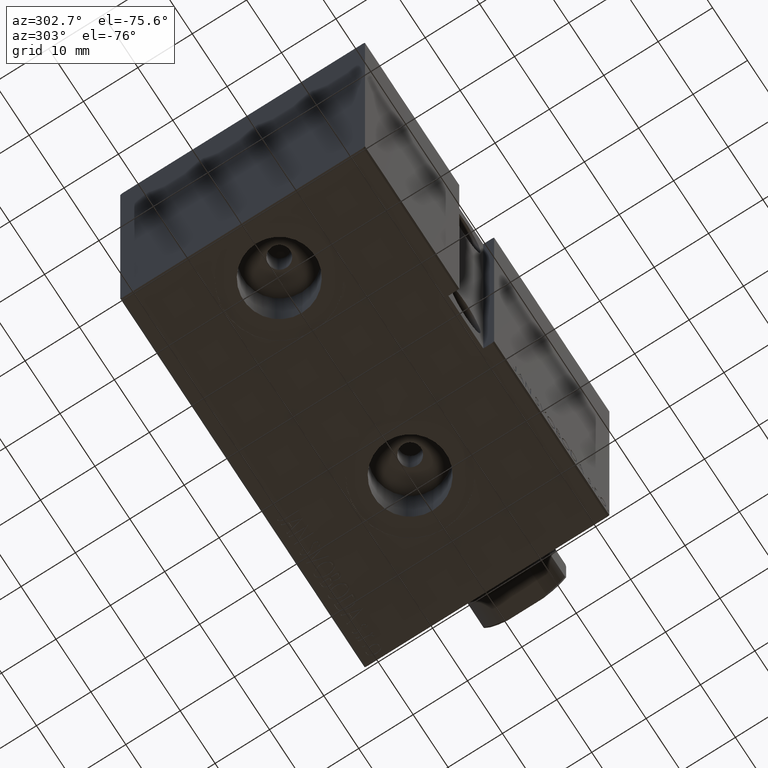
[diagram: clean part render]
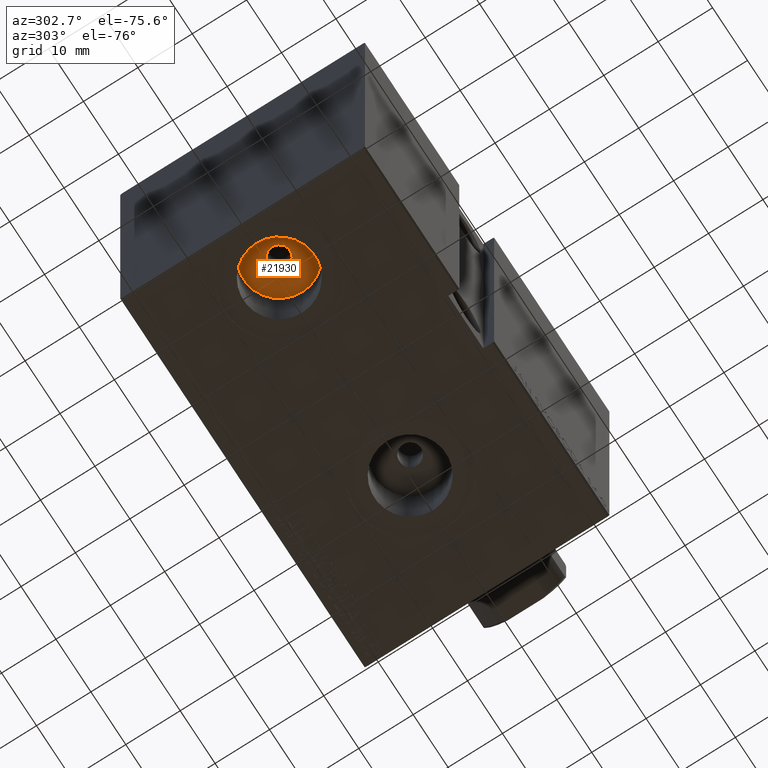
[diagram: same view with one face highlighted and labeled with its STEP entity id]
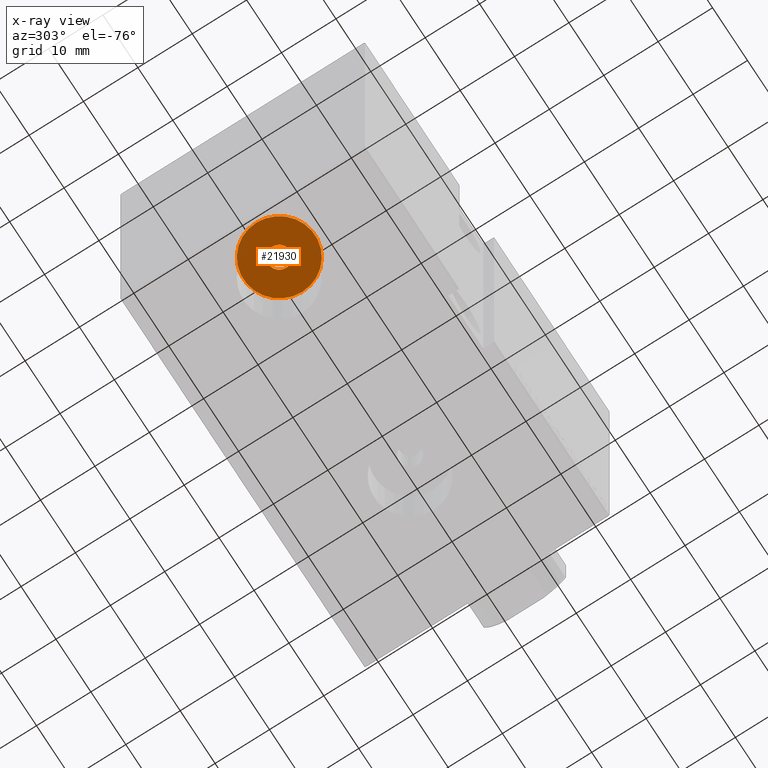
[diagram: x-ray of the same camera — body ghosted, the highlighted face saturated]
A machine part, auxiliary view. The second image highlights one B-rep face of the part: STEP entity #21930.
The next image is the same camera in x-ray: the body ghosted, the highlighted face saturated — about 5% of this face is hidden behind the body in this view.
In plain terms, the highlighted planar face has unit normal (-0, 0, -1).
Its self-contained STEP definition (entity closure, byte-faithful):
#2844 = EDGE_CURVE ( 'NONE', #32928, #23031, #12277, .T. ) ;
#8086 = VERTEX_POINT ( 'NONE', #24657 ) ;
#8460 = FACE_OUTER_BOUND ( 'NONE', #33020, .T. ) ;
#10645 = DIRECTION ( 'NONE',  ( -1.000000000000000000, 0.000000000000000000, 0.000000000000000000 ) ) ;
#10933 = EDGE_CURVE ( 'NONE', #23031, #32928, #41000, .T. ) ;
#11424 = DIRECTION ( 'NONE',  ( -1.000000000000000000, 0.000000000000000000, 0.000000000000000000 ) ) ;
#11504 = DIRECTION ( 'NONE',  ( 0.000000000000000000, 0.000000000000000000, -1.000000000000000000 ) ) ;
#12277 = CIRCLE ( 'NONE', #37968, 6.580000000000002736 ) ;
#14108 = PLANE ( 'NONE',  #16254 ) ;
#16142 = ORIENTED_EDGE ( 'NONE', *, *, #2844, .T. ) ;
#16254 = AXIS2_PLACEMENT_3D ( 'NONE', #37372, #11504, #41490 ) ;
#17062 = CIRCLE ( 'NONE', #20547, 2.000000000000001776 ) ;
#17712 = EDGE_CURVE ( 'NONE', #8086, #30688, #30754, .T. ) ;
#20534 = ORIENTED_EDGE ( 'NONE', *, *, #10933, .T. ) ;
#20547 = AXIS2_PLACEMENT_3D ( 'NONE', #41938, #25005, #28475 ) ;
#20859 = FACE_BOUND ( 'NONE', #35933, .T. ) ;
#21930 = ADVANCED_FACE ( 'NONE', ( #20859, #8460 ), #14108, .T. ) ;
#23031 = VERTEX_POINT ( 'NONE', #31015 ) ;
#23526 = ORIENTED_EDGE ( 'NONE', *, *, #31076, .F. ) ;
#24657 = CARTESIAN_POINT ( 'NONE',  ( 61.50000000000000711, -6.411035587436231391E-15, -19.49999999999999645 ) ) ;
#24901 = CARTESIAN_POINT ( 'NONE',  ( 59.50000000000000711, -6.655964947265702476E-15, -19.49999999999999645 ) ) ;
#25005 = DIRECTION ( 'NONE',  ( 0.000000000000000000, 0.000000000000000000, -1.000000000000000000 ) ) ;
#25853 = CARTESIAN_POINT ( 'NONE',  ( 59.50000000000000711, -6.655964947265702476E-15, -19.49999999999999645 ) ) ;
#28475 = DIRECTION ( 'NONE',  ( -1.000000000000000000, 0.000000000000000000, 0.000000000000000000 ) ) ;
#28902 = DIRECTION ( 'NONE',  ( 0.000000000000000000, 0.000000000000000000, -1.000000000000000000 ) ) ;
#30688 = VERTEX_POINT ( 'NONE', #37876 ) ;
#30754 = CIRCLE ( 'NONE', #39731, 2.000000000000001776 ) ;
#31015 = CARTESIAN_POINT ( 'NONE',  ( 66.07999999999999829, -5.850147353426743435E-15, -19.49999999999999645 ) ) ;
#31076 = EDGE_CURVE ( 'NONE', #30688, #8086, #17062, .T. ) ;
#32647 = AXIS2_PLACEMENT_3D ( 'NONE', #25853, #28902, #41945 ) ;
#32928 = VERTEX_POINT ( 'NONE', #38360 ) ;
#33020 = EDGE_LOOP ( 'NONE', ( #16142, #20534 ) ) ;
#35454 = ORIENTED_EDGE ( 'NONE', *, *, #17712, .F. ) ;
#35933 = EDGE_LOOP ( 'NONE', ( #23526, #35454 ) ) ;
#36515 = CARTESIAN_POINT ( 'NONE',  ( 59.50000000000000711, -6.655964947265702476E-15, -19.49999999999999645 ) ) ;
#37372 = CARTESIAN_POINT ( 'NONE',  ( 0.000000000000000000, 0.000000000000000000, -19.49999999999999645 ) ) ;
#37876 = CARTESIAN_POINT ( 'NONE',  ( 57.50000000000000000, -6.655964947265702476E-15, -19.49999999999999645 ) ) ;
#37968 = AXIS2_PLACEMENT_3D ( 'NONE', #24901, #41628, #11424 ) ;
#38360 = CARTESIAN_POINT ( 'NONE',  ( 52.92000000000000171, -6.655964947265702476E-15, -19.49999999999999645 ) ) ;
#39552 = DIRECTION ( 'NONE',  ( 0.000000000000000000, 0.000000000000000000, -1.000000000000000000 ) ) ;
#39731 = AXIS2_PLACEMENT_3D ( 'NONE', #36515, #39552, #10645 ) ;
#41000 = CIRCLE ( 'NONE', #32647, 6.580000000000002736 ) ;
#41490 = DIRECTION ( 'NONE',  ( -1.000000000000000000, 0.000000000000000000, -0.000000000000000000 ) ) ;
#41628 = DIRECTION ( 'NONE',  ( 0.000000000000000000, 0.000000000000000000, -1.000000000000000000 ) ) ;
#41938 = CARTESIAN_POINT ( 'NONE',  ( 59.50000000000000711, -6.655964947265702476E-15, -19.49999999999999645 ) ) ;
#41945 = DIRECTION ( 'NONE',  ( -1.000000000000000000, 0.000000000000000000, 0.000000000000000000 ) ) ;